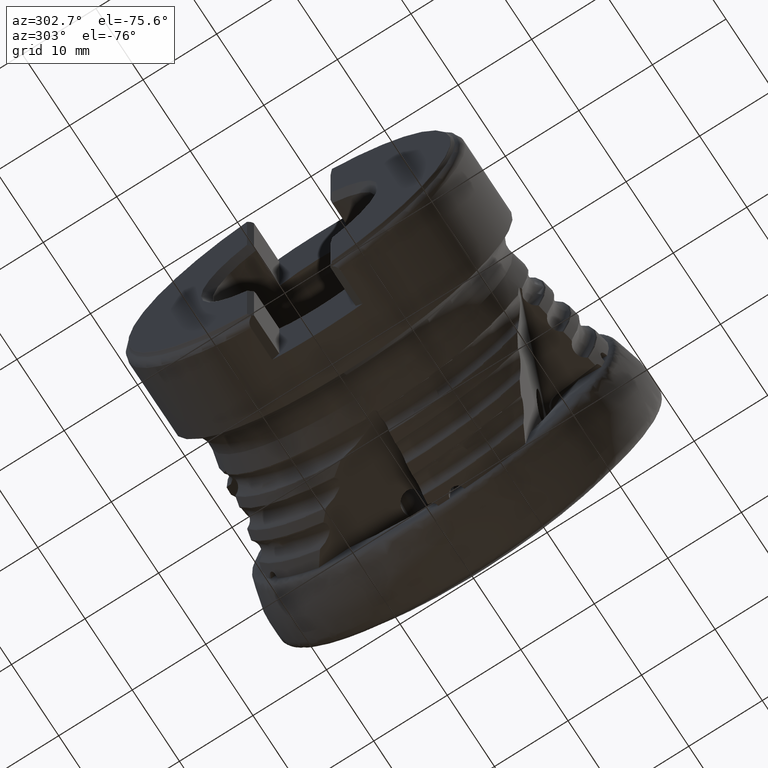
[diagram: clean part render]
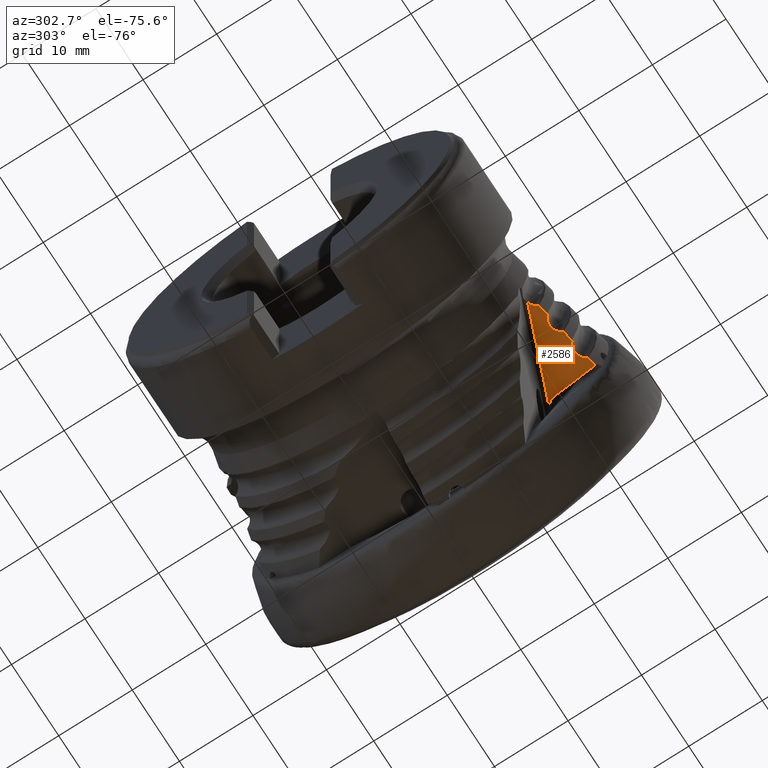
[diagram: same view with one face highlighted and labeled with its STEP entity id]
A machine part, auxiliary view. The second image highlights one B-rep face of the part: STEP entity #2586.
In plain terms, the highlighted planar face has unit normal (0.0698, -0.3083, 0.9487).
Its self-contained STEP definition (entity closure, byte-faithful):
#11 = DIRECTION ( 'NONE',  ( -0.06975647374411164700, 0.3082642445078078700, -0.9487397904213872300 ) ) ;
#23 = VECTOR ( 'NONE', #1764, 1000.000000000000100 ) ;
#45 = AXIS2_PLACEMENT_3D ( 'NONE', #811, #6297, #1617 ) ;
#103 = ORIENTED_EDGE ( 'NONE', *, *, #2781, .F. ) ;
#240 = B_SPLINE_CURVE_WITH_KNOTS ( 'NONE', 3,
 ( #8342, #9177, #1371, #6832 ),
 .UNSPECIFIED., .F., .F.,
 ( 4, 4 ),
 ( 0.001457546654804236300, 0.002587518781632595500 ),
 .UNSPECIFIED. ) ;
#265 = CARTESIAN_POINT ( 'NONE',  ( -14.50750793320247200, -21.56281411409157300, -6.824897692160543100 ) ) ;
#468 = CARTESIAN_POINT ( 'NONE',  ( -17.67226772964713900, -20.93264177933404500, -6.387452054778213700 ) ) ;
#475 = B_SPLINE_CURVE_WITH_KNOTS ( 'NONE', 3,
 ( #5890, #8262, #2040, #7484, #2834, #8290, #3616, #9086, #4401, #9896, #5206, #480, #5970, #1294, #6754, #2069 ),
 .UNSPECIFIED., .F., .F.,
 ( 4, 2, 2, 2, 2, 2, 2, 4 ),
 ( 2.699627758592965300E-007, 0.0003656528789479796100, 0.0007310357951200998600, 0.001096418711292220300, 0.001461801627464340500, 0.001827184543636460900, 0.002192567459808581300, 0.002923333292152828200 ),
 .UNSPECIFIED. ) ;
#476 = CARTESIAN_POINT ( 'NONE',  ( -15.15815027521881900, -20.81655115370447400, -6.534583418514208700 ) ) ;
#480 = CARTESIAN_POINT ( 'NONE',  ( -11.26171794935382300, -21.54646663081051400, -7.058234083697022300 ) ) ;
#589 = EDGE_CURVE ( 'NONE', #5181, #2596, #8669, .T. ) ;
#620 = CARTESIAN_POINT ( 'NONE',  ( -13.12128899078860100, -21.80530754716689800, -7.005610888693603000 ) ) ;
#702 = ORIENTED_EDGE ( 'NONE', *, *, #1192, .T. ) ;
#811 = CARTESIAN_POINT ( 'NONE',  ( -4.380650839651339700, -23.50656814949276500, -8.201042893795579000 ) ) ;
#836 = ORIENTED_EDGE ( 'NONE', *, *, #3985, .F. ) ;
#1040 = B_SPLINE_CURVE_WITH_KNOTS ( 'NONE', 3,
 ( #9346, #10147, #7001, #2326 ),
 .UNSPECIFIED., .F., .F.,
 ( 4, 4 ),
 ( 2.700331210144512600E-007, 0.0001951743298486664500 ),
 .UNSPECIFIED. ) ;
#1048 = CARTESIAN_POINT ( 'NONE',  ( -14.50750793320247200, -21.56281411409157300, -6.824897692160543100 ) ) ;
#1192 = EDGE_CURVE ( 'NONE', #9275, #8450, #2493, .T. ) ;
#1283 = CARTESIAN_POINT ( 'NONE',  ( -14.73756910108484600, -21.23100235044627500, -6.700170175036711300 ) ) ;
#1294 = CARTESIAN_POINT ( 'NONE',  ( -10.88246325996961200, -21.83228478637477500, -7.178986885182355900 ) ) ;
#1371 = CARTESIAN_POINT ( 'NONE',  ( -10.14135321453041900, -22.42873625334655300, -7.427276128087599200 ) ) ;
#1399 = ORIENTED_EDGE ( 'NONE', *, *, #8050, .F. ) ;
#1440 = CARTESIAN_POINT ( 'NONE',  ( -17.07315635611658100, -20.96595632156873600, -6.442326509835547600 ) ) ;
#1501 = VECTOR ( 'NONE', #3235, 1000.000000000000000 ) ;
#1617 = DIRECTION ( 'NONE',  ( 7.443127949249219400E-014, -0.9510565162951460900, -0.3090169943749701000 ) ) ;
#1712 = ORIENTED_EDGE ( 'NONE', *, *, #2074, .T. ) ;
#1730 = VERTEX_POINT ( 'NONE', #10033 ) ;
#1741 = VERTEX_POINT ( 'NONE', #3766 ) ;
#1764 = DIRECTION ( 'NONE',  ( 0.1496681375759281200, 0.9435255241596642900, 0.2955656168328508200 ) ) ;
#1831 = ORIENTED_EDGE ( 'NONE', *, *, #7787, .T. ) ;
#1853 = CARTESIAN_POINT ( 'NONE',  ( -14.57153388419220400, -21.55008737209852400, -6.816054989283115300 ) ) ;
#1910 = CARTESIAN_POINT ( 'NONE',  ( -17.25462601103393800, -21.01591725933071300, -6.445217173369627500 ) ) ;
#2035 = CARTESIAN_POINT ( 'NONE',  ( -16.67091028465924300, -20.69704835981590900, -6.384528320381274800 ) ) ;
#2040 = CARTESIAN_POINT ( 'NONE',  ( -12.88434764302864700, -21.60954349356361000, -6.959424499523155600 ) ) ;
#2069 = CARTESIAN_POINT ( 'NONE',  ( -10.64922864038293900, -22.24206419565646100, -7.329280955352174900 ) ) ;
#2074 = EDGE_CURVE ( 'NONE', #3908, #9981, #240, .T. ) ;
#2140 = LINE ( 'NONE', #6438, #23 ) ;
#2164 = CARTESIAN_POINT ( 'NONE',  ( -19.47590246233600200, -19.86011054466829200, -5.906352564435012600 ) ) ;
#2220 = AXIS2_PLACEMENT_3D ( 'NONE', #5357, #2225, #7667 ) ;
#2225 = DIRECTION ( 'NONE',  ( 0.06975647374411163300, -0.3082642445078078700, 0.9487397904213871200 ) ) ;
#2272 = B_SPLINE_CURVE_WITH_KNOTS ( 'NONE', 3,
 ( #9665, #4169, #5739, #1048 ),
 .UNSPECIFIED., .F., .F.,
 ( 4, 4 ),
 ( 2.057626500700301100E-007, 0.001289226428052093600 ),
 .UNSPECIFIED. ) ;
#2282 = EDGE_CURVE ( 'NONE', #3908, #9675, #2140, .T. ) ;
#2326 = CARTESIAN_POINT ( 'NONE',  ( -17.25462601103393800, -21.01591725933071300, -6.445217173369627500 ) ) ;
#2445 = CARTESIAN_POINT ( 'NONE',  ( -7.799236301065747100, -15.25156932787272100, -5.267478316616271500 ) ) ;
#2493 = B_SPLINE_CURVE_WITH_KNOTS ( 'NONE', 3,
 ( #265, #1853, #7306, #2647 ),
 .UNSPECIFIED., .F., .F.,
 ( 4, 4 ),
 ( 2.028522008499390400E-007, 0.0001950598529537331500 ),
 .UNSPECIFIED. ) ;
#2585 = VERTEX_POINT ( 'NONE', #1440 ) ;
#2586 = ADVANCED_FACE ( 'NONE', ( #2997 ), #4563, .F. ) ;
#2596 = VERTEX_POINT ( 'NONE', #3789 ) ;
#2647 = CARTESIAN_POINT ( 'NONE',  ( -14.64922864038293700, -21.44850853520790000, -6.777337486335306400 ) ) ;
#2672 = EDGE_CURVE ( 'NONE', #3300, #9275, #2272, .T. ) ;
#2772 = CARTESIAN_POINT ( 'NONE',  ( -13.07315635611658400, -21.76157735472077800, -6.994941059123838100 ) ) ;
#2781 = EDGE_CURVE ( 'NONE', #2585, #8450, #3036, .T. ) ;
#2831 = CARTESIAN_POINT ( 'NONE',  ( -16.32064533368610200, -20.58567449764852600, -6.374094129971162200 ) ) ;
#2834 = CARTESIAN_POINT ( 'NONE',  ( -12.55580385029482900, -21.44567940269433100, -6.930338143073517400 ) ) ;
#2955 = CARTESIAN_POINT ( 'NONE',  ( -19.11647885156690300, -20.03785627237738300, -5.990532417478688900 ) ) ;
#2997 = FACE_OUTER_BOUND ( 'NONE', #7451, .T. ) ;
#3007 = CARTESIAN_POINT ( 'NONE',  ( -13.25462601103393800, -21.81168791567211700, -6.997880338179155200 ) ) ;
#3036 = B_SPLINE_CURVE_WITH_KNOTS ( 'NONE', 3,
 ( #4365, #9046, #6719, #2035, #7480, #2831, #8286, #3609, #9078, #4396, #9891, #5199, #476, #5967, #1283, #6747 ),
 .UNSPECIFIED., .F., .F.,
 ( 4, 2, 2, 2, 2, 2, 2, 4 ),
 ( 2.698559599538269300E-007, 0.0003656924867272452900, 0.0007311151174945368400, 0.001096537748261828200, 0.001461960379029119700, 0.001827383009796411000, 0.002192805640563702700, 0.002923650902098287400 ),
 .UNSPECIFIED. ) ;
#3192 = CARTESIAN_POINT ( 'NONE',  ( -10.64922864038293900, -22.24206419565646100, -7.329280955352174900 ) ) ;
#3235 = DIRECTION ( 'NONE',  ( 0.9289711258367763200, 0.3666458956266028200, 0.05082749828310070100 ) ) ;
#3300 = VERTEX_POINT ( 'NONE', #3007 ) ;
#3599 = LINE ( 'NONE', #2445, #1501 ) ;
#3609 = CARTESIAN_POINT ( 'NONE',  ( -15.95364233972256300, -20.55761653373247500, -6.391961587238756500 ) ) ;
#3616 = CARTESIAN_POINT ( 'NONE',  ( -12.19852963367064900, -21.36165510997104300, -6.929305725528536200 ) ) ;
#3620 = AXIS2_PLACEMENT_3D ( 'NONE', #4714, #11, #5495 ) ;
#3638 = CARTESIAN_POINT ( 'NONE',  ( -9.409017541868625000, -22.57359543573967600, -7.528189003787502100 ) ) ;
#3718 = CARTESIAN_POINT ( 'NONE',  ( -18.50750793320247900, -20.76591213581291800, -6.271866938570822100 ) ) ;
#3736 = CARTESIAN_POINT ( 'NONE',  ( -18.84076965448135600, -20.31582991046025200, -6.101123156861096900 ) ) ;
#3766 = CARTESIAN_POINT ( 'NONE',  ( -18.64922864038294000, -20.65145890138771300, -6.224258756551883200 ) ) ;
#3773 = CARTESIAN_POINT ( 'NONE',  ( -13.25462601103393800, -21.81168791567211700, -6.997880338179155200 ) ) ;
#3789 = CARTESIAN_POINT ( 'NONE',  ( -18.50750793320247900, -20.76591213581291800, -6.271866938570822100 ) ) ;
#3841 = CARTESIAN_POINT ( 'NONE',  ( -10.50750793320247400, -22.35625206377739400, -7.376802914632139400 ) ) ;
#3867 = CARTESIAN_POINT ( 'NONE',  ( -10.50750793320247400, -22.35625206377739400, -7.376802914632139400 ) ) ;
#3908 = VERTEX_POINT ( 'NONE', #3638 ) ;
#3985 = EDGE_CURVE ( 'NONE', #9675, #7812, #6987, .T. ) ;
#3993 = ORIENTED_EDGE ( 'NONE', *, *, #2672, .T. ) ;
#4169 = CARTESIAN_POINT ( 'NONE',  ( -13.67226599498866900, -21.72878258535733700, -6.940235616051400500 ) ) ;
#4365 = CARTESIAN_POINT ( 'NONE',  ( -17.07315635611658100, -20.96595632156873600, -6.442326509835547600 ) ) ;
#4396 = CARTESIAN_POINT ( 'NONE',  ( -15.59386813308096900, -20.61449601745152500, -6.436895394702567300 ) ) ;
#4401 = CARTESIAN_POINT ( 'NONE',  ( -11.83321212871194200, -21.36167312638160700, -6.956171695539961100 ) ) ;
#4474 = VERTEX_POINT ( 'NONE', #6935 ) ;
#4525 = CARTESIAN_POINT ( 'NONE',  ( -18.68557331923625900, -20.56192343338443600, -6.192494662391280400 ) ) ;
#4563 = PLANE ( 'NONE',  #2220 ) ;
#4714 = CARTESIAN_POINT ( 'NONE',  ( -6.465934145759130800, -16.69796460769576600, -5.835472207485525900 ) ) ;
#4790 = VERTEX_POINT ( 'NONE', #2772 ) ;
#5028 = CARTESIAN_POINT ( 'NONE',  ( -18.50750793320247900, -20.76591213581291800, -6.271866938570822100 ) ) ;
#5029 = CARTESIAN_POINT ( 'NONE',  ( -8.438479185006993800, -16.45520760312319200, -5.611563509866170000 ) ) ;
#5161 = ORIENTED_EDGE ( 'NONE', *, *, #8193, .T. ) ;
#5181 = VERTEX_POINT ( 'NONE', #5503 ) ;
#5199 = CARTESIAN_POINT ( 'NONE',  ( -15.26143974196420800, -20.75253467815539600, -6.506188805240647400 ) ) ;
#5206 = CARTESIAN_POINT ( 'NONE',  ( -11.47859461521571100, -21.44630889335032700, -7.009744918193328900 ) ) ;
#5305 = CARTESIAN_POINT ( 'NONE',  ( -18.64922864038294000, -20.65145890138771300, -6.224258756551883200 ) ) ;
#5357 = CARTESIAN_POINT ( 'NONE',  ( -4.380650839651340600, -23.50656814949276500, -8.201042893795579000 ) ) ;
#5414 = ORIENTED_EDGE ( 'NONE', *, *, #9902, .T. ) ;
#5495 = DIRECTION ( 'NONE',  ( 0.9975640502598252000, 0.02155593585460162700, -0.06634234890810902800 ) ) ;
#5503 = CARTESIAN_POINT ( 'NONE',  ( -17.25462601103393800, -21.01591725933071300, -6.445217173369627500 ) ) ;
#5513 = CARTESIAN_POINT ( 'NONE',  ( -7.654071448485863600, -15.19559318179671200, -5.259963868265942600 ) ) ;
#5559 = EDGE_CURVE ( 'NONE', #2596, #1741, #6132, .T. ) ;
#5739 = CARTESIAN_POINT ( 'NONE',  ( -14.08989347157428900, -21.64582532163398600, -6.882574939345641200 ) ) ;
#5800 = B_SPLINE_CURVE_WITH_KNOTS ( 'NONE', 3,
 ( #2164, #9990, #2955, #8407, #3736, #9212, #4525, #10022 ),
 .UNSPECIFIED., .F., .F.,
 ( 4, 2, 2, 4 ),
 ( 0.002196746211136195600, 0.002804730408191067800, 0.003108722506718507000, 0.003412714605245946500 ),
 .UNSPECIFIED. ) ;
#5890 = CARTESIAN_POINT ( 'NONE',  ( -13.07315635611658400, -21.76157735472077800, -6.994941059123838100 ) ) ;
#5967 = CARTESIAN_POINT ( 'NONE',  ( -14.88238591730829100, -21.03863664368866500, -6.627019053515161000 ) ) ;
#5970 = CARTESIAN_POINT ( 'NONE',  ( -11.15837931970024100, -21.61039136989583300, -7.086602504709194500 ) ) ;
#6100 = CARTESIAN_POINT ( 'NONE',  ( -13.07315635611658400, -21.76157735472077800, -6.994941059123838100 ) ) ;
#6132 = B_SPLINE_CURVE_WITH_KNOTS ( 'NONE', 3,
 ( #3718, #8396, #10012, #5305 ),
 .UNSPECIFIED., .F., .F.,
 ( 4, 4 ),
 ( 2.028934206431157800E-007, 0.0001951498379696378400 ),
 .UNSPECIFIED. ) ;
#6293 = CARTESIAN_POINT ( 'NONE',  ( -10.57152266531123500, -22.34357967218780100, -7.367978696144015200 ) ) ;
#6297 = DIRECTION ( 'NONE',  ( -0.06975647374411163300, 0.3082642445078078200, -0.9487397904213871200 ) ) ;
#6438 = CARTESIAN_POINT ( 'NONE',  ( -8.438479185006993800, -16.45520760312319200, -5.611563509866170000 ) ) ;
#6507 = CARTESIAN_POINT ( 'NONE',  ( -14.64922864038293700, -21.44850853520790000, -6.777337486335306400 ) ) ;
#6719 = CARTESIAN_POINT ( 'NONE',  ( -16.88424937153245200, -20.81399687084791200, -6.406841353102422900 ) ) ;
#6747 = CARTESIAN_POINT ( 'NONE',  ( -14.64922864038293700, -21.44850853520790000, -6.777337486335306400 ) ) ;
#6754 = CARTESIAN_POINT ( 'NONE',  ( -10.73758827631938800, -22.02458817768521400, -7.252122035971129100 ) ) ;
#6832 = CARTESIAN_POINT ( 'NONE',  ( -10.50750793320247400, -22.35625206377739400, -7.376802914632139400 ) ) ;
#6935 = CARTESIAN_POINT ( 'NONE',  ( -19.47590246233600200, -19.86011054466829200, -5.906352564435012600 ) ) ;
#6963 = B_SPLINE_CURVE_WITH_KNOTS ( 'NONE', 3,
 ( #6100, #620, #8452, #3773 ),
 .UNSPECIFIED., .F., .F.,
 ( 4, 4 ),
 ( 2.701398958199533600E-007, 0.0001952067125208701700 ),
 .UNSPECIFIED. ) ;
#6987 = CIRCLE ( 'NONE', #3620, 2.000000000000000900 ) ;
#7001 = CARTESIAN_POINT ( 'NONE',  ( -17.19059248463917200, -21.02868519517201300, -6.454073817924411000 ) ) ;
#7306 = CARTESIAN_POINT ( 'NONE',  ( -14.62568443229101900, -21.50647756587196800, -6.797903863515957200 ) ) ;
#7319 = ORIENTED_EDGE ( 'NONE', *, *, #7356, .F. ) ;
#7356 = EDGE_CURVE ( 'NONE', #4474, #1741, #5800, .T. ) ;
#7451 = EDGE_LOOP ( 'NONE', ( #1831, #836, #9388, #1712, #8376, #1399, #5414, #3993, #702, #103, #5161, #7944, #8573, #7319, #8438 ) ) ;
#7480 = CARTESIAN_POINT ( 'NONE',  ( -16.55553409938615100, -20.65036853819084700, -6.377844207232088000 ) ) ;
#7484 = CARTESIAN_POINT ( 'NONE',  ( -12.67112704960196200, -21.49245686708807700, -6.937057878095851400 ) ) ;
#7667 = DIRECTION ( 'NONE',  ( 0.9975640502598250900, 0.02155593585460106200, -0.06634234890810890300 ) ) ;
#7787 = EDGE_CURVE ( 'NONE', #10105, #7812, #8258, .T. ) ;
#7812 = VERTEX_POINT ( 'NONE', #5513 ) ;
#7851 = CARTESIAN_POINT ( 'NONE',  ( -10.62568565594026300, -22.30000959633051500, -7.349839564714346600 ) ) ;
#7944 = ORIENTED_EDGE ( 'NONE', *, *, #589, .T. ) ;
#7947 = CARTESIAN_POINT ( 'NONE',  ( -7.799236301065744400, -15.25156932787272800, -5.267478316616273300 ) ) ;
#8050 = EDGE_CURVE ( 'NONE', #4790, #1730, #475, .T. ) ;
#8193 = EDGE_CURVE ( 'NONE', #2585, #5181, #1040, .T. ) ;
#8258 = CIRCLE ( 'NONE', #45, 9.404123203702900100 ) ;
#8262 = CARTESIAN_POINT ( 'NONE',  ( -12.98291965980741500, -21.67959414058362500, -6.974937787391095200 ) ) ;
#8286 = CARTESIAN_POINT ( 'NONE',  ( -16.19811594421666700, -20.56669857878041100, -6.376937502698778500 ) ) ;
#8290 = CARTESIAN_POINT ( 'NONE',  ( -12.32100576554030300, -21.38076109973810500, -6.926508531184287800 ) ) ;
#8342 = CARTESIAN_POINT ( 'NONE',  ( -9.409017541868625000, -22.57359543573967600, -7.528189003787502100 ) ) ;
#8376 = ORIENTED_EDGE ( 'NONE', *, *, #10020, .T. ) ;
#8396 = CARTESIAN_POINT ( 'NONE',  ( -18.57155039398145700, -20.75312314142597000, -6.263002794775600200 ) ) ;
#8407 = CARTESIAN_POINT ( 'NONE',  ( -18.90481849616944700, -20.24037196961442900, -6.071896168860315700 ) ) ;
#8438 = ORIENTED_EDGE ( 'NONE', *, *, #8840, .T. ) ;
#8450 = VERTEX_POINT ( 'NONE', #6507 ) ;
#8452 = CARTESIAN_POINT ( 'NONE',  ( -13.19056809442112600, -21.82440399402055700, -7.006721926513678900 ) ) ;
#8573 = ORIENTED_EDGE ( 'NONE', *, *, #5559, .T. ) ;
#8669 = B_SPLINE_CURVE_WITH_KNOTS ( 'NONE', 3,
 ( #1910, #468, #9006, #5028 ),
 .UNSPECIFIED., .F., .F.,
 ( 4, 4 ),
 ( 2.058046188866098200E-007, 0.001289494746860571400 ),
 .UNSPECIFIED. ) ;
#8840 = EDGE_CURVE ( 'NONE', #4474, #10105, #3599, .T. ) ;
#9006 = CARTESIAN_POINT ( 'NONE',  ( -18.08989523904609000, -20.84930753218776500, -6.329668886320577700 ) ) ;
#9046 = CARTESIAN_POINT ( 'NONE',  ( -16.98287413100570500, -20.88399921522085400, -6.422335068561175800 ) ) ;
#9078 = CARTESIAN_POINT ( 'NONE',  ( -15.83278825816983300, -20.56713008507796300, -6.403938572287267500 ) ) ;
#9086 = CARTESIAN_POINT ( 'NONE',  ( -11.95406464636175100, -21.35229762860141300, -6.944239681800538300 ) ) ;
#9177 = CARTESIAN_POINT ( 'NONE',  ( -9.775189654125565400, -22.50118365872466300, -7.477738039726828500 ) ) ;
#9212 = CARTESIAN_POINT ( 'NONE',  ( -18.73112770151281800, -20.47687944357671700, -6.161512790822308200 ) ) ;
#9223 = CARTESIAN_POINT ( 'NONE',  ( -14.50750793320247200, -21.56281411409157300, -6.824897692160543100 ) ) ;
#9275 = VERTEX_POINT ( 'NONE', #9223 ) ;
#9346 = CARTESIAN_POINT ( 'NONE',  ( -17.07315635611658100, -20.96595632156873600, -6.442326509835547600 ) ) ;
#9388 = ORIENTED_EDGE ( 'NONE', *, *, #2282, .F. ) ;
#9665 = CARTESIAN_POINT ( 'NONE',  ( -13.25462601103393800, -21.81168791567211700, -6.997880338179155200 ) ) ;
#9675 = VERTEX_POINT ( 'NONE', #5029 ) ;
#9891 = CARTESIAN_POINT ( 'NONE',  ( -15.47824437121621900, -20.65215877845165000, -6.457634051047692800 ) ) ;
#9896 = CARTESIAN_POINT ( 'NONE',  ( -11.59428950561794000, -21.40876134267200800, -6.989038466196711300 ) ) ;
#9902 = EDGE_CURVE ( 'NONE', #4790, #3300, #6963, .T. ) ;
#9906 = B_SPLINE_CURVE_WITH_KNOTS ( 'NONE', 3,
 ( #3841, #6293, #7851, #3192 ),
 .UNSPECIFIED., .F., .F.,
 ( 4, 4 ),
 ( 2.028156563665464700E-007, 0.0001949904987269570300 ),
 .UNSPECIFIED. ) ;
#9981 = VERTEX_POINT ( 'NONE', #3867 ) ;
#9990 = CARTESIAN_POINT ( 'NONE',  ( -19.28898846479062400, -19.93005063110131700, -5.942820402736495900 ) ) ;
#10012 = CARTESIAN_POINT ( 'NONE',  ( -18.62568487968522000, -20.70945918366105000, -6.244835255101088800 ) ) ;
#10020 = EDGE_CURVE ( 'NONE', #9981, #1730, #9906, .T. ) ;
#10022 = CARTESIAN_POINT ( 'NONE',  ( -18.64922864038294000, -20.65145890138771300, -6.224258756551883200 ) ) ;
#10033 = CARTESIAN_POINT ( 'NONE',  ( -10.64922864038293900, -22.24206419565646100, -7.329280955352174900 ) ) ;
#10105 = VERTEX_POINT ( 'NONE', #7947 ) ;
#10147 = CARTESIAN_POINT ( 'NONE',  ( -17.12130004496780700, -21.00966057700011900, -6.452987099195400600 ) ) ;